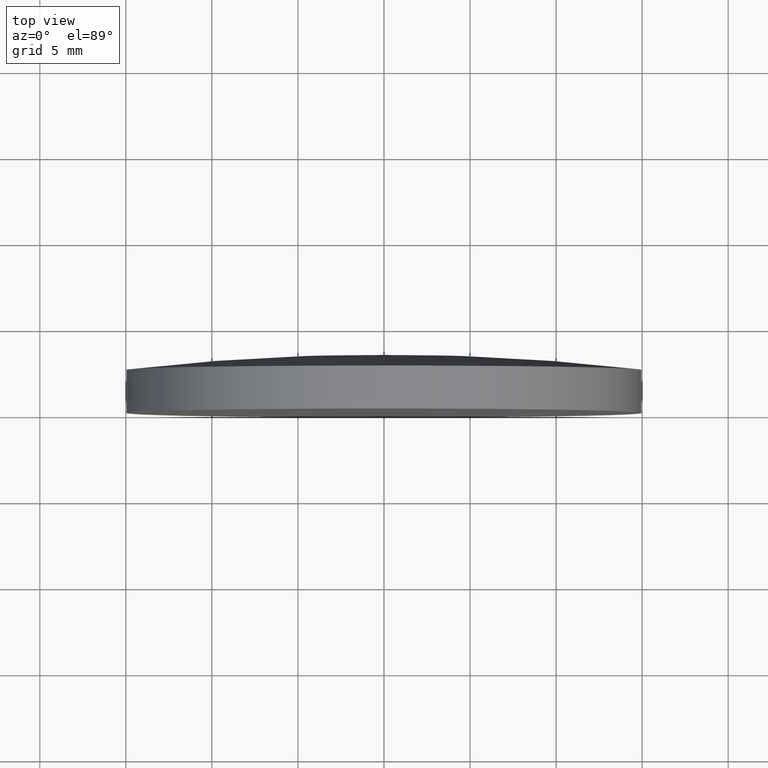
[diagram: clean part render]
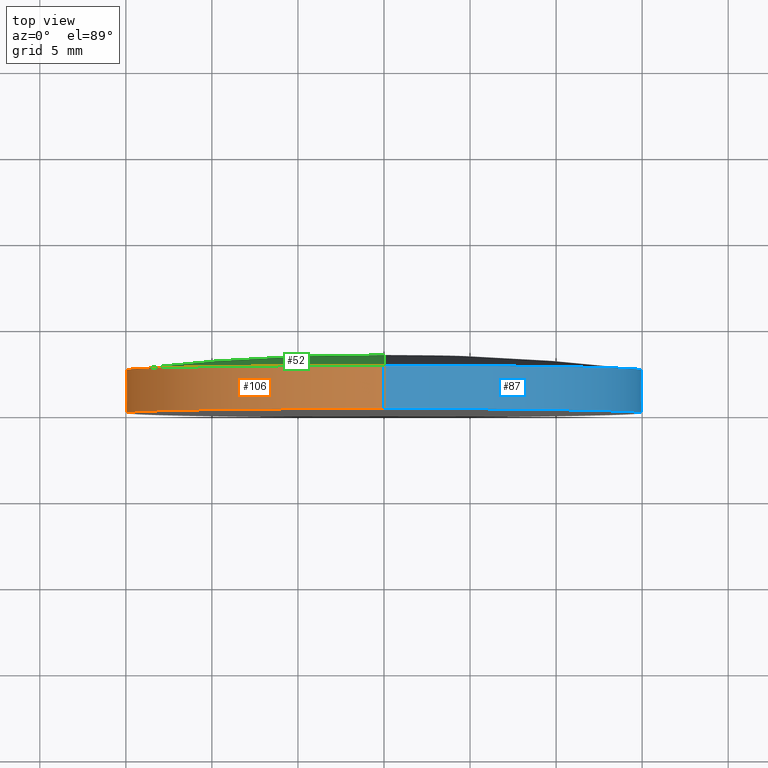
[diagram: same view with three faces highlighted in distinct colors, each labeled with its STEP entity id]
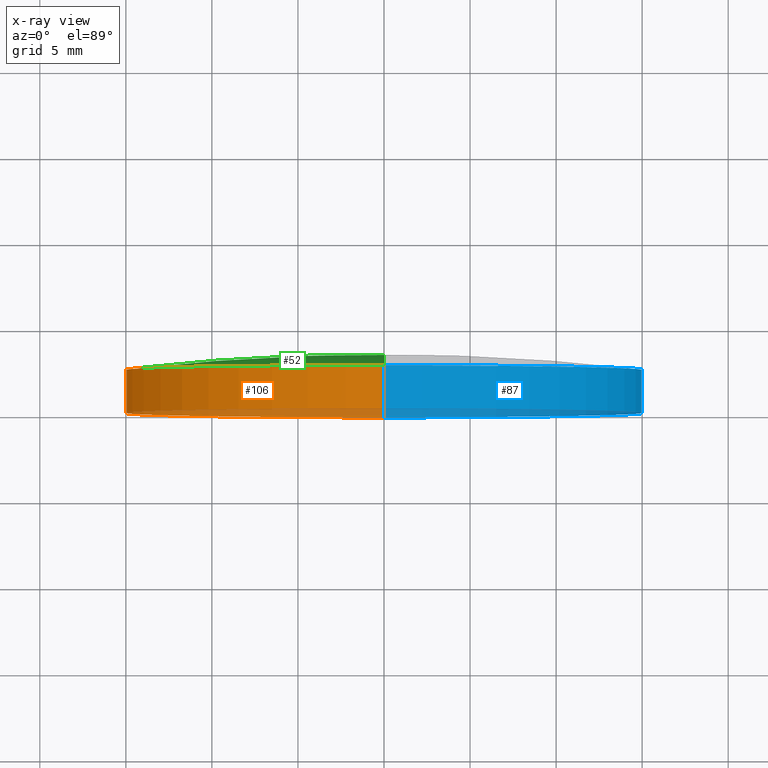
[diagram: x-ray of the same camera — body ghosted, the three highlighted faces saturated]
A machine part, top view with three faces highlighted in distinct colors.
The next image is the same camera in x-ray (body ghosted, the three faces saturated) — at least one of them is partly hidden behind the body in this view.
Their STEP definitions:

[orange] entity #106 — the highlighted cylindrical surface (partial cylindrical patch) has radius 15 mm, axis along (-0, 1, -0).
#1 = DIRECTION ( 'NONE',  ( -0.000000000000000000, 1.000000000000000000, -0.000000000000000000 ) ) ;
#5 = EDGE_CURVE ( 'NONE', #88, #112, #66, .T. ) ;
#6 = EDGE_LOOP ( 'NONE', ( #36, #153, #19, #101 ) ) ;
#12 = CARTESIAN_POINT ( 'NONE',  ( 0.000000000000000000, 3.370000000000000107, 0.000000000000000000 ) ) ;
#14 = CARTESIAN_POINT ( 'NONE',  ( 0.000000000000000000, 3.370000000000000107, 15.00000000000000000 ) ) ;
#19 = ORIENTED_EDGE ( 'NONE', *, *, #147, .T. ) ;
#27 = DIRECTION ( 'NONE',  ( 0.000000000000000000, 0.000000000000000000, 1.000000000000000000 ) ) ;
#36 = ORIENTED_EDGE ( 'NONE', *, *, #70, .F. ) ;
#43 = CARTESIAN_POINT ( 'NONE',  ( 1.836970198721029589E-15, 3.370000000000000107, -15.00000000000000000 ) ) ;
#44 = VECTOR ( 'NONE', #78, 1000.000000000000000 ) ;
#57 = LINE ( 'NONE', #43, #44 ) ;
#60 = CARTESIAN_POINT ( 'NONE',  ( 0.000000000000000000, -1.734723475976807094E-15, 15.00000000000000000 ) ) ;
#61 = CARTESIAN_POINT ( 'NONE',  ( 1.836970198721029589E-15, -1.734723475976807094E-15, -15.00000000000000000 ) ) ;
#66 = CIRCLE ( 'NONE', #135, 15.00000000000000000 ) ;
#70 = EDGE_CURVE ( 'NONE', #124, #88, #57, .T. ) ;
#73 = DIRECTION ( 'NONE',  ( 0.000000000000000000, 0.000000000000000000, 1.000000000000000000 ) ) ;
#75 = CARTESIAN_POINT ( 'NONE',  ( 1.836970198721026039E-15, 2.500000000000000444, -14.99999999999996980 ) ) ;
#77 = CARTESIAN_POINT ( 'NONE',  ( 0.000000000000000000, 2.500000000000000444, 14.99999999999996980 ) ) ;
#78 = DIRECTION ( 'NONE',  ( -0.000000000000000000, 1.000000000000000000, -0.000000000000000000 ) ) ;
#80 = LINE ( 'NONE', #14, #183 ) ;
#88 = VERTEX_POINT ( 'NONE', #75 ) ;
#91 = EDGE_CURVE ( 'NONE', #124, #191, #188, .T. ) ;
#94 = FACE_OUTER_BOUND ( 'NONE', #6, .T. ) ;
#101 = ORIENTED_EDGE ( 'NONE', *, *, #5, .F. ) ;
#104 = AXIS2_PLACEMENT_3D ( 'NONE', #12, #173, #158 ) ;
#106 = ADVANCED_FACE ( 'NONE', ( #94 ), #110, .T. ) ;
#110 = CYLINDRICAL_SURFACE ( 'NONE', #104, 15.00000000000000000 ) ;
#112 = VERTEX_POINT ( 'NONE', #77 ) ;
#124 = VERTEX_POINT ( 'NONE', #61 ) ;
#135 = AXIS2_PLACEMENT_3D ( 'NONE', #199, #198, #73 ) ;
#139 = CARTESIAN_POINT ( 'NONE',  ( 0.000000000000000000, -1.734723475976807094E-15, 0.000000000000000000 ) ) ;
#147 = EDGE_CURVE ( 'NONE', #191, #112, #80, .T. ) ;
#153 = ORIENTED_EDGE ( 'NONE', *, *, #91, .T. ) ;
#158 = DIRECTION ( 'NONE',  ( 0.000000000000000000, 0.000000000000000000, 1.000000000000000000 ) ) ;
#173 = DIRECTION ( 'NONE',  ( -0.000000000000000000, 1.000000000000000000, -0.000000000000000000 ) ) ;
#182 = AXIS2_PLACEMENT_3D ( 'NONE', #139, #185, #27 ) ;
#183 = VECTOR ( 'NONE', #1, 1000.000000000000000 ) ;
#185 = DIRECTION ( 'NONE',  ( -0.000000000000000000, 1.000000000000000000, -0.000000000000000000 ) ) ;
#188 = CIRCLE ( 'NONE', #182, 15.00000000000000000 ) ;
#191 = VERTEX_POINT ( 'NONE', #60 ) ;
#198 = DIRECTION ( 'NONE',  ( -0.000000000000000000, 1.000000000000000000, -0.000000000000000000 ) ) ;
#199 = CARTESIAN_POINT ( 'NONE',  ( 0.000000000000000000, 2.499999999999998224, 0.000000000000000000 ) ) ;

[blue] entity #87 — the highlighted cylindrical surface (partial cylindrical patch) has radius 15 mm, axis along (-0, 1, -0).
#1 = DIRECTION ( 'NONE',  ( -0.000000000000000000, 1.000000000000000000, -0.000000000000000000 ) ) ;
#10 = DIRECTION ( 'NONE',  ( 0.000000000000000000, 0.000000000000000000, 1.000000000000000000 ) ) ;
#14 = CARTESIAN_POINT ( 'NONE',  ( 0.000000000000000000, 3.370000000000000107, 15.00000000000000000 ) ) ;
#29 = CARTESIAN_POINT ( 'NONE',  ( 0.000000000000000000, 3.370000000000000107, 0.000000000000000000 ) ) ;
#37 = CIRCLE ( 'NONE', #96, 15.00000000000000000 ) ;
#39 = DIRECTION ( 'NONE',  ( 0.000000000000000000, 0.000000000000000000, 1.000000000000000000 ) ) ;
#41 = ORIENTED_EDGE ( 'NONE', *, *, #65, .T. ) ;
#43 = CARTESIAN_POINT ( 'NONE',  ( 1.836970198721029589E-15, 3.370000000000000107, -15.00000000000000000 ) ) ;
#44 = VECTOR ( 'NONE', #78, 1000.000000000000000 ) ;
#45 = DIRECTION ( 'NONE',  ( 0.000000000000000000, 0.000000000000000000, 1.000000000000000000 ) ) ;
#57 = LINE ( 'NONE', #43, #44 ) ;
#60 = CARTESIAN_POINT ( 'NONE',  ( 0.000000000000000000, -1.734723475976807094E-15, 15.00000000000000000 ) ) ;
#61 = CARTESIAN_POINT ( 'NONE',  ( 1.836970198721029589E-15, -1.734723475976807094E-15, -15.00000000000000000 ) ) ;
#65 = EDGE_CURVE ( 'NONE', #191, #124, #193, .T. ) ;
#70 = EDGE_CURVE ( 'NONE', #124, #88, #57, .T. ) ;
#74 = AXIS2_PLACEMENT_3D ( 'NONE', #29, #154, #10 ) ;
#75 = CARTESIAN_POINT ( 'NONE',  ( 1.836970198721026039E-15, 2.500000000000000444, -14.99999999999996980 ) ) ;
#77 = CARTESIAN_POINT ( 'NONE',  ( 0.000000000000000000, 2.500000000000000444, 14.99999999999996980 ) ) ;
#78 = DIRECTION ( 'NONE',  ( -0.000000000000000000, 1.000000000000000000, -0.000000000000000000 ) ) ;
#80 = LINE ( 'NONE', #14, #183 ) ;
#86 = ORIENTED_EDGE ( 'NONE', *, *, #167, .F. ) ;
#87 = ADVANCED_FACE ( 'NONE', ( #107 ), #90, .T. ) ;
#88 = VERTEX_POINT ( 'NONE', #75 ) ;
#90 = CYLINDRICAL_SURFACE ( 'NONE', #74, 15.00000000000000000 ) ;
#96 = AXIS2_PLACEMENT_3D ( 'NONE', #144, #111, #45 ) ;
#107 = FACE_OUTER_BOUND ( 'NONE', #136, .T. ) ;
#111 = DIRECTION ( 'NONE',  ( -0.000000000000000000, 1.000000000000000000, -0.000000000000000000 ) ) ;
#112 = VERTEX_POINT ( 'NONE', #77 ) ;
#124 = VERTEX_POINT ( 'NONE', #61 ) ;
#133 = ORIENTED_EDGE ( 'NONE', *, *, #70, .T. ) ;
#136 = EDGE_LOOP ( 'NONE', ( #41, #133, #86, #165 ) ) ;
#144 = CARTESIAN_POINT ( 'NONE',  ( 0.000000000000000000, 2.499999999999998224, 0.000000000000000000 ) ) ;
#147 = EDGE_CURVE ( 'NONE', #191, #112, #80, .T. ) ;
#154 = DIRECTION ( 'NONE',  ( -0.000000000000000000, 1.000000000000000000, -0.000000000000000000 ) ) ;
#165 = ORIENTED_EDGE ( 'NONE', *, *, #147, .F. ) ;
#167 = EDGE_CURVE ( 'NONE', #112, #88, #37, .T. ) ;
#183 = VECTOR ( 'NONE', #1, 1000.000000000000000 ) ;
#184 = DIRECTION ( 'NONE',  ( -0.000000000000000000, 1.000000000000000000, -0.000000000000000000 ) ) ;
#190 = AXIS2_PLACEMENT_3D ( 'NONE', #195, #184, #39 ) ;
#191 = VERTEX_POINT ( 'NONE', #60 ) ;
#193 = CIRCLE ( 'NONE', #190, 15.00000000000000000 ) ;
#195 = CARTESIAN_POINT ( 'NONE',  ( 0.000000000000000000, -1.734723475976807094E-15, 0.000000000000000000 ) ) ;

[green] entity #52 — the highlighted toroidal blend (fillet) surface has major radius 0.0293 mm and minor (blend) radius 129.24 mm.
#5 = EDGE_CURVE ( 'NONE', #88, #112, #66, .T. ) ;
#15 = AXIS2_PLACEMENT_3D ( 'NONE', #142, #141, #201 ) ;
#23 = ORIENTED_EDGE ( 'NONE', *, *, #137, .F. ) ;
#38 = FACE_OUTER_BOUND ( 'NONE', #49, .T. ) ;
#49 = EDGE_LOOP ( 'NONE', ( #23, #69, #117 ) ) ;
#52 = ADVANCED_FACE ( 'NONE', ( #38 ), #161, .T. ) ;
#54 = DIRECTION ( 'NONE',  ( -0.000000000000000000, 1.000000000000000000, -0.000000000000000000 ) ) ;
#62 = CARTESIAN_POINT ( 'NONE',  ( 0.000000000000000000, 3.370000000000000107, 0.000000000000000000 ) ) ;
#66 = CIRCLE ( 'NONE', #135, 15.00000000000000000 ) ;
#69 = ORIENTED_EDGE ( 'NONE', *, *, #5, .T. ) ;
#73 = DIRECTION ( 'NONE',  ( 0.000000000000000000, 0.000000000000000000, 1.000000000000000000 ) ) ;
#75 = CARTESIAN_POINT ( 'NONE',  ( 1.836970198721026039E-15, 2.500000000000000444, -14.99999999999996980 ) ) ;
#77 = CARTESIAN_POINT ( 'NONE',  ( 0.000000000000000000, 2.500000000000000444, 14.99999999999996980 ) ) ;
#79 = CIRCLE ( 'NONE', #132, 129.2400000000000375 ) ;
#88 = VERTEX_POINT ( 'NONE', #75 ) ;
#112 = VERTEX_POINT ( 'NONE', #77 ) ;
#117 = ORIENTED_EDGE ( 'NONE', *, *, #121, .T. ) ;
#120 = CARTESIAN_POINT ( 'NONE',  ( 0.000000000000000000, -125.8699966763873448, 0.000000000000000000 ) ) ;
#121 = EDGE_CURVE ( 'NONE', #112, #164, #143, .T. ) ;
#122 = DIRECTION ( 'NONE',  ( 0.000000000000000000, 0.000000000000000000, 1.000000000000000000 ) ) ;
#126 = CARTESIAN_POINT ( 'NONE',  ( 3.589463375758273298E-18, -125.8699966763873448, -0.02931019276951850328 ) ) ;
#132 = AXIS2_PLACEMENT_3D ( 'NONE', #126, #186, #160 ) ;
#135 = AXIS2_PLACEMENT_3D ( 'NONE', #199, #198, #73 ) ;
#137 = EDGE_CURVE ( 'NONE', #88, #164, #79, .T. ) ;
#141 = DIRECTION ( 'NONE',  ( -1.000000000000000000, 0.000000000000000000, 0.000000000000000000 ) ) ;
#142 = CARTESIAN_POINT ( 'NONE',  ( 0.000000000000000000, -125.8699966763873448, 0.02931019276951850328 ) ) ;
#143 = CIRCLE ( 'NONE', #15, 129.2400000000000375 ) ;
#160 = DIRECTION ( 'NONE',  ( 1.224646799147353454E-16, 0.000000000000000000, -1.000000000000000000 ) ) ;
#161 = TOROIDAL_SURFACE ( 'NONE', #166, 0.02931019276951850328, 129.2400000000000375 ) ;
#164 = VERTEX_POINT ( 'NONE', #62 ) ;
#166 = AXIS2_PLACEMENT_3D ( 'NONE', #120, #54, #122 ) ;
#186 = DIRECTION ( 'NONE',  ( 1.000000000000000000, 0.000000000000000000, 1.224646799147353207E-16 ) ) ;
#198 = DIRECTION ( 'NONE',  ( -0.000000000000000000, 1.000000000000000000, -0.000000000000000000 ) ) ;
#199 = CARTESIAN_POINT ( 'NONE',  ( 0.000000000000000000, 2.499999999999998224, 0.000000000000000000 ) ) ;
#201 = DIRECTION ( 'NONE',  ( 0.000000000000000000, 0.000000000000000000, 1.000000000000000000 ) ) ;